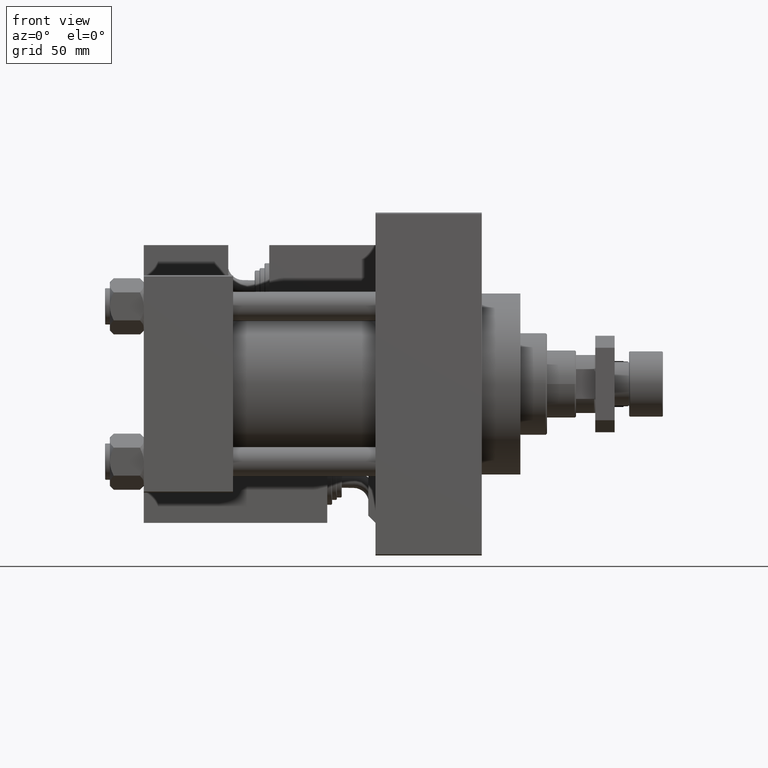
[diagram: clean part render]
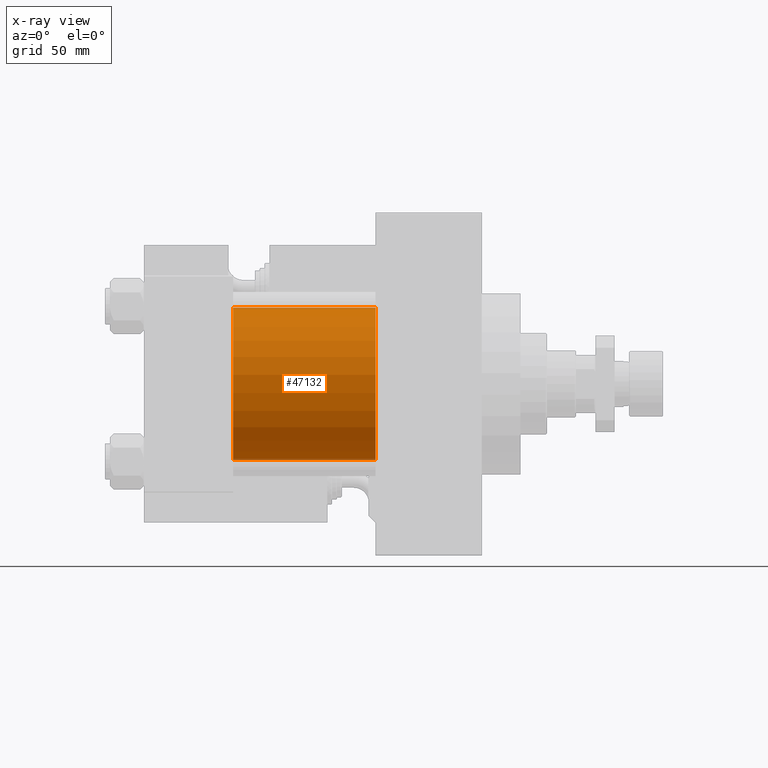
[diagram: x-ray — body ghosted, one internal face saturated and labeled with its STEP entity id]
A machine part, front view, then the same camera in x-ray: the body is ghosted and one INTERNAL B-rep face — a face not visible from any outside direction — is saturated and labeled: STEP entity #47132.
In plain terms, the highlighted cylindrical surface (partial cylindrical patch) has radius 31.5 mm, axis along (-1, -0, -0).
Its self-contained STEP definition (entity closure, byte-faithful):
#1 = DIRECTION ( 'NONE',  ( 0.000000000000000000, 0.000000000000000000, -1.000000000000000000 ) ) ;
#929 = LINE ( 'NONE', #12260, #46164 ) ;
#1194 = VERTEX_POINT ( 'NONE', #6474 ) ;
#4500 = FACE_OUTER_BOUND ( 'NONE', #11956, .T. ) ;
#4765 = VECTOR ( 'NONE', #53308, 1000.000000000000000 ) ;
#5596 = VERTEX_POINT ( 'NONE', #10172 ) ;
#6474 = CARTESIAN_POINT ( 'NONE',  ( 96.00000000000000000, 1.255552203348951850E-15, -31.50000000000000000 ) ) ;
#8013 = DIRECTION ( 'NONE',  ( -1.000000000000000000, -0.000000000000000000, -0.000000000000000000 ) ) ;
#10047 = ORIENTED_EDGE ( 'NONE', *, *, #50790, .F. ) ;
#10172 = CARTESIAN_POINT ( 'NONE',  ( 37.00000000000000000, -2.602085213965210642E-15, 31.50000000000000000 ) ) ;
#11956 = EDGE_LOOP ( 'NONE', ( #27298, #38740, #48024, #10047 ) ) ;
#12260 = CARTESIAN_POINT ( 'NONE',  ( 96.00000000000000000, 1.255552203348951850E-15, -31.50000000000000000 ) ) ;
#12332 = DIRECTION ( 'NONE',  ( 0.000000000000000000, 0.000000000000000000, 1.000000000000000000 ) ) ;
#15747 = AXIS2_PLACEMENT_3D ( 'NONE', #28363, #16461, #1 ) ;
#16461 = DIRECTION ( 'NONE',  ( 1.000000000000000000, 0.000000000000000000, 0.000000000000000000 ) ) ;
#16858 = LINE ( 'NONE', #49241, #4765 ) ;
#16972 = CARTESIAN_POINT ( 'NONE',  ( 37.00000000000000000, 1.255552203348951850E-15, -31.50000000000000000 ) ) ;
#20958 = CIRCLE ( 'NONE', #15747, 31.50000000000000000 ) ;
#24696 = DIRECTION ( 'NONE',  ( -1.000000000000000000, -0.000000000000000000, -0.000000000000000000 ) ) ;
#25912 = EDGE_CURVE ( 'NONE', #5596, #40661, #32133, .T. ) ;
#27294 = EDGE_CURVE ( 'NONE', #44900, #1194, #20958, .T. ) ;
#27298 = ORIENTED_EDGE ( 'NONE', *, *, #27294, .T. ) ;
#28363 = CARTESIAN_POINT ( 'NONE',  ( 96.00000000000000000, -2.602085213965210642E-15, 0.000000000000000000 ) ) ;
#32133 = CIRCLE ( 'NONE', #45887, 31.50000000000000000 ) ;
#32346 = AXIS2_PLACEMENT_3D ( 'NONE', #45817, #8013, #12332 ) ;
#37028 = CARTESIAN_POINT ( 'NONE',  ( 37.00000000000000000, -2.602085213965210642E-15, 0.000000000000000000 ) ) ;
#38740 = ORIENTED_EDGE ( 'NONE', *, *, #50805, .T. ) ;
#39961 = CARTESIAN_POINT ( 'NONE',  ( 96.00000000000000000, -2.602085213965210642E-15, 31.50000000000000000 ) ) ;
#40661 = VERTEX_POINT ( 'NONE', #16972 ) ;
#40702 = CYLINDRICAL_SURFACE ( 'NONE', #32346, 31.50000000000000000 ) ;
#44900 = VERTEX_POINT ( 'NONE', #39961 ) ;
#45817 = CARTESIAN_POINT ( 'NONE',  ( 96.00000000000000000, -2.602085213965210642E-15, 0.000000000000000000 ) ) ;
#45887 = AXIS2_PLACEMENT_3D ( 'NONE', #37028, #50239, #46190 ) ;
#46164 = VECTOR ( 'NONE', #24696, 1000.000000000000000 ) ;
#46190 = DIRECTION ( 'NONE',  ( 0.000000000000000000, 0.000000000000000000, -1.000000000000000000 ) ) ;
#47132 = ADVANCED_FACE ( 'NONE', ( #4500 ), #40702, .F. ) ;
#48024 = ORIENTED_EDGE ( 'NONE', *, *, #25912, .F. ) ;
#49241 = CARTESIAN_POINT ( 'NONE',  ( 96.00000000000000000, -2.602085213965210642E-15, 31.50000000000000000 ) ) ;
#50239 = DIRECTION ( 'NONE',  ( 1.000000000000000000, 0.000000000000000000, 0.000000000000000000 ) ) ;
#50790 = EDGE_CURVE ( 'NONE', #44900, #5596, #16858, .T. ) ;
#50805 = EDGE_CURVE ( 'NONE', #1194, #40661, #929, .T. ) ;
#53308 = DIRECTION ( 'NONE',  ( -1.000000000000000000, -0.000000000000000000, -0.000000000000000000 ) ) ;